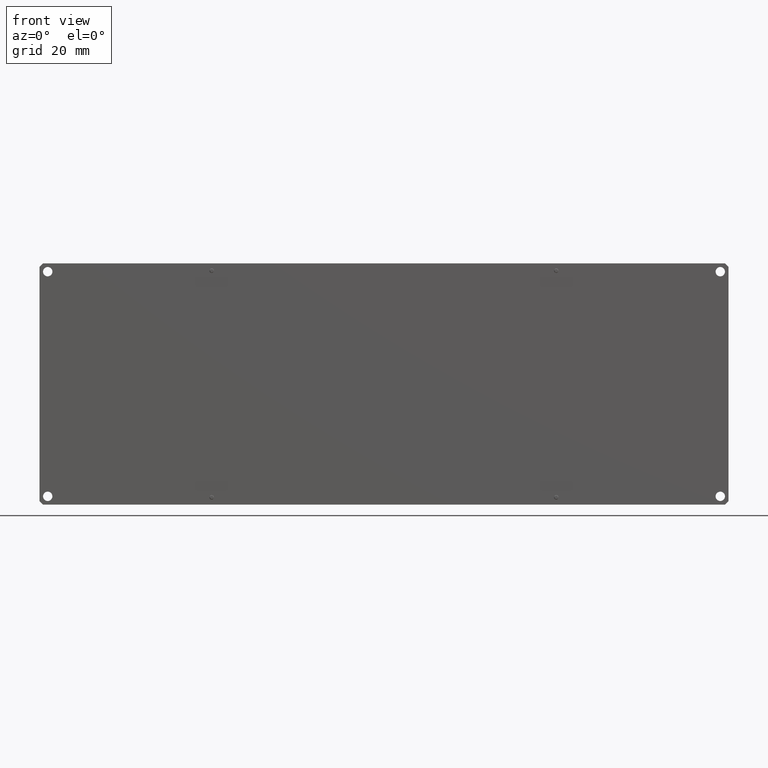
[diagram: clean part render]
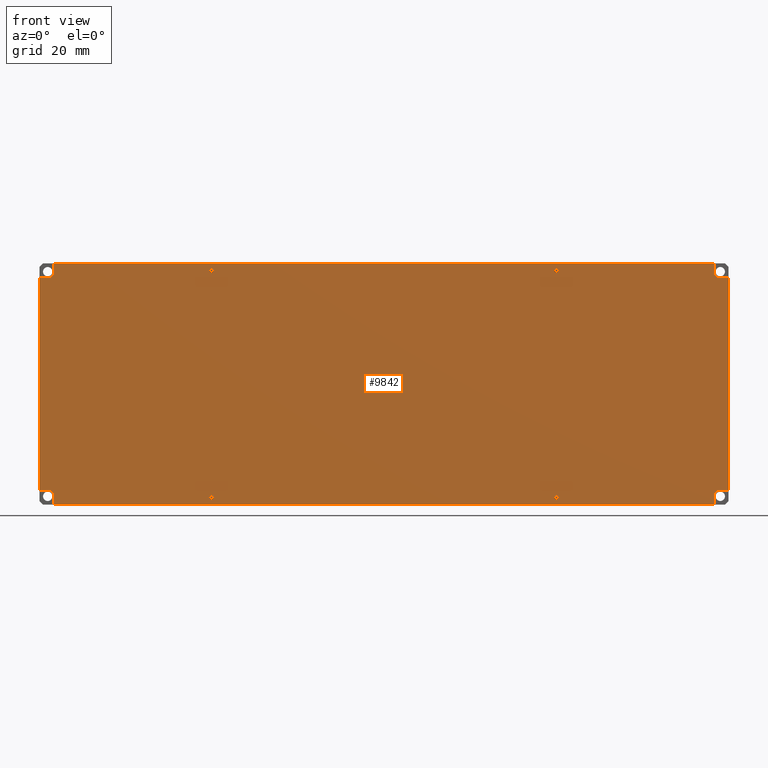
[diagram: same view with one face highlighted and labeled with its STEP entity id]
A machine part, front view. The second image highlights one B-rep face of the part: STEP entity #9842.
In plain terms, the highlighted planar face has unit normal (0, -1, 0).
Its self-contained STEP definition (entity closure, byte-faithful):
#54 = EDGE_LOOP ( 'NONE', ( #3489, #5987 ) ) ;
#159 = EDGE_CURVE ( 'NONE', #6700, #1275, #6209, .T. ) ;
#300 = DIRECTION ( 'NONE',  ( -1.000000000000000000, 0.000000000000000000, 0.000000000000000000 ) ) ;
#303 = CIRCLE ( 'NONE', #9514, 0.7937500000000028422 ) ;
#385 = ORIENTED_EDGE ( 'NONE', *, *, #1023, .T. ) ;
#399 = ORIENTED_EDGE ( 'NONE', *, *, #4015, .T. ) ;
#423 = CARTESIAN_POINT ( 'NONE',  ( 40.26335141060196321, 15.16853224274894707, 42.72163759024714835 ) ) ;
#592 = EDGE_CURVE ( 'NONE', #11281, #5117, #13250, .T. ) ;
#709 = DIRECTION ( 'NONE',  ( 0.000000000000000000, 0.000000000000000000, -1.000000000000000000 ) ) ;
#869 = CARTESIAN_POINT ( 'NONE',  ( -144.3749094508077633, 15.16853224274894529, 44.60883481082478141 ) ) ;
#877 = DIRECTION ( 'NONE',  ( 0.000000000000000000, -1.000000000000000000, 0.000000000000000000 ) ) ;
#993 = LINE ( 'NONE', #6250, #3787 ) ;
#1010 = DIRECTION ( 'NONE',  ( 0.000000000000000000, -1.000000000000000000, 0.000000000000000000 ) ) ;
#1023 = EDGE_CURVE ( 'NONE', #13661, #10976, #4090, .T. ) ;
#1081 = CARTESIAN_POINT ( 'NONE',  ( -86.28510945080824968, 15.16853224274894707, -41.49716518917520602 ) ) ;
#1162 = CARTESIAN_POINT ( 'NONE',  ( 101.0398905491916679, 15.16853224274894529, -38.75396518917558097 ) ) ;
#1255 = CARTESIAN_POINT ( 'NONE',  ( -144.3749094508075927, 15.16853224274894529, 41.56083481082482933 ) ) ;
#1275 = VERTEX_POINT ( 'NONE', #2667 ) ;
#1295 = ORIENTED_EDGE ( 'NONE', *, *, #8875, .F. ) ;
#1365 = AXIS2_PLACEMENT_3D ( 'NONE', #6021, #4962, #3852 ) ;
#1368 = ORIENTED_EDGE ( 'NONE', *, *, #6543, .T. ) ;
#1410 = AXIS2_PLACEMENT_3D ( 'NONE', #8560, #12842, #9883 ) ;
#1523 = VECTOR ( 'NONE', #8697, 1000.000000000000000 ) ;
#1597 = CARTESIAN_POINT ( 'NONE',  ( -85.83357031221844125, 15.16853224274894707, -42.14996796859757211 ) ) ;
#1619 = ORIENTED_EDGE ( 'NONE', *, *, #10301, .T. ) ;
#1625 = DIRECTION ( 'NONE',  ( -0.000000000000000000, 1.000000000000000000, -0.000000000000000000 ) ) ;
#1643 = DIRECTION ( 'NONE',  ( -1.000000000000000000, 0.000000000000000000, 0.000000000000000000 ) ) ;
#1651 = EDGE_CURVE ( 'NONE', #12858, #5943, #9712, .T. ) ;
#1660 = DIRECTION ( 'NONE',  ( 1.000000000000000000, 0.000000000000000000, 0.000000000000000000 ) ) ;
#1801 = ORIENTED_EDGE ( 'NONE', *, *, #9383, .T. ) ;
#2183 = CARTESIAN_POINT ( 'NONE',  ( -144.3749094508077633, 15.16853224274894529, -44.03716518917553913 ) ) ;
#2330 = ORIENTED_EDGE ( 'NONE', *, *, #4262, .F. ) ;
#2355 = ORIENTED_EDGE ( 'NONE', *, *, #10711, .F. ) ;
#2436 = CARTESIAN_POINT ( 'NONE',  ( -86.28510945080824968, 15.16853224274894707, 42.06883481082479648 ) ) ;
#2496 = ORIENTED_EDGE ( 'NONE', *, *, #592, .T. ) ;
#2564 = ORIENTED_EDGE ( 'NONE', *, *, #5886, .T. ) ;
#2567 = CIRCLE ( 'NONE', #4808, 0.7937500000000028422 ) ;
#2667 = CARTESIAN_POINT ( 'NONE',  ( -144.3749094508077349, 15.16853224274894529, -40.98916518917555862 ) ) ;
#2796 = VECTOR ( 'NONE', #11606, 1000.000000000000000 ) ;
#2890 = CARTESIAN_POINT ( 'NONE',  ( -146.6101094508076130, 15.16853224274894529, -38.75396518917558808 ) ) ;
#2930 = VERTEX_POINT ( 'NONE', #1597 ) ;
#2948 = CIRCLE ( 'NONE', #12150, 2.235199999999999854 ) ;
#2973 = DIRECTION ( 'NONE',  ( 0.000000000000000000, 0.000000000000000000, -1.000000000000000000 ) ) ;
#3149 = ORIENTED_EDGE ( 'NONE', *, *, #13086, .T. ) ;
#3300 = FACE_BOUND ( 'NONE', #5816, .T. ) ;
#3342 = EDGE_CURVE ( 'NONE', #5730, #9364, #2948, .T. ) ;
#3378 = DIRECTION ( 'NONE',  ( 0.000000000000000000, 0.000000000000000000, -1.000000000000000000 ) ) ;
#3431 = VECTOR ( 'NONE', #10058, 1000.000000000000000 ) ;
#3487 = DIRECTION ( 'NONE',  ( 1.000000000000000000, 0.000000000000000000, 0.000000000000000000 ) ) ;
#3489 = ORIENTED_EDGE ( 'NONE', *, *, #11814, .F. ) ;
#3521 = DIRECTION ( 'NONE',  ( 6.374311985216712074E-14, 0.000000000000000000, -1.000000000000000000 ) ) ;
#3637 = CARTESIAN_POINT ( 'NONE',  ( -149.6581094508077001, 15.16853224274894529, 39.32563481082482326 ) ) ;
#3656 = DIRECTION ( 'NONE',  ( -0.000000000000000000, 1.000000000000000000, -0.000000000000000000 ) ) ;
#3724 = CARTESIAN_POINT ( 'NONE',  ( -149.6581094508077001, 15.16853224274894529, -38.75396518917558097 ) ) ;
#3787 = VECTOR ( 'NONE', #10402, 1000.000000000000000 ) ;
#3791 = DIRECTION ( 'NONE',  ( 0.000000000000000000, 0.000000000000000000, -1.000000000000000000 ) ) ;
#3808 = LINE ( 'NONE', #11187, #3431 ) ;
#3852 = DIRECTION ( 'NONE',  ( 0.000000000000000000, 0.000000000000000000, -1.000000000000000000 ) ) ;
#3879 = CARTESIAN_POINT ( 'NONE',  ( 104.0878905491917976, 15.16853224274894529, 39.32563481082482326 ) ) ;
#3984 = DIRECTION ( 'NONE',  ( -5.463695987328560673E-14, 0.000000000000000000, 1.000000000000000000 ) ) ;
#4015 = EDGE_CURVE ( 'NONE', #1275, #13296, #6309, .T. ) ;
#4020 = CARTESIAN_POINT ( 'NONE',  ( 104.0878905491917976, 15.16853224274894529, -38.75396518917558097 ) ) ;
#4090 = LINE ( 'NONE', #4020, #2796 ) ;
#4150 = VECTOR ( 'NONE', #7770, 1000.000000000000000 ) ;
#4262 = EDGE_CURVE ( 'NONE', #13395, #11988, #7397, .T. ) ;
#4430 = CARTESIAN_POINT ( 'NONE',  ( 101.0398905491916679, 15.16853224274894529, -38.75396518917557387 ) ) ;
#4483 = ORIENTED_EDGE ( 'NONE', *, *, #5797, .T. ) ;
#4512 = DIRECTION ( 'NONE',  ( 0.000000000000000000, 0.000000000000000000, -1.000000000000000000 ) ) ;
#4530 = CARTESIAN_POINT ( 'NONE',  ( 104.0878905491917976, 15.16853224274894529, -38.75396518917558097 ) ) ;
#4624 = AXIS2_PLACEMENT_3D ( 'NONE', #11374, #12145, #6799 ) ;
#4808 = AXIS2_PLACEMENT_3D ( 'NONE', #2436, #13319, #11003 ) ;
#4831 = CARTESIAN_POINT ( 'NONE',  ( 40.71489054919177875, 15.16853224274894707, 42.06883481082478227 ) ) ;
#4962 = DIRECTION ( 'NONE',  ( 0.000000000000000000, -1.000000000000000000, 0.000000000000000000 ) ) ;
#5117 = VERTEX_POINT ( 'NONE', #7247 ) ;
#5431 = CARTESIAN_POINT ( 'NONE',  ( 98.80469054919183236, 15.16853224274894529, 44.60883481082478141 ) ) ;
#5484 = ORIENTED_EDGE ( 'NONE', *, *, #8191, .T. ) ;
#5538 = CARTESIAN_POINT ( 'NONE',  ( 98.80469054919166183, 15.16853224274894529, -40.98916518917555862 ) ) ;
#5545 = AXIS2_PLACEMENT_3D ( 'NONE', #13130, #3656, #3378 ) ;
#5725 = EDGE_CURVE ( 'NONE', #6993, #5744, #2567, .T. ) ;
#5730 = VERTEX_POINT ( 'NONE', #5538 ) ;
#5744 = VERTEX_POINT ( 'NONE', #5806 ) ;
#5797 = EDGE_CURVE ( 'NONE', #13296, #9963, #6921, .T. ) ;
#5806 = CARTESIAN_POINT ( 'NONE',  ( -86.73664858939805811, 15.16853224274894707, 42.72163759024716256 ) ) ;
#5816 = EDGE_LOOP ( 'NONE', ( #2330, #1295 ) ) ;
#5886 = EDGE_CURVE ( 'NONE', #9963, #5730, #8120, .T. ) ;
#5943 = VERTEX_POINT ( 'NONE', #6424 ) ;
#5972 = VECTOR ( 'NONE', #8234, 1000.000000000000000 ) ;
#5987 = ORIENTED_EDGE ( 'NONE', *, *, #5725, .F. ) ;
#6021 = CARTESIAN_POINT ( 'NONE',  ( -86.28510945080824968, 15.16853224274894707, 42.06883481082479648 ) ) ;
#6182 = AXIS2_PLACEMENT_3D ( 'NONE', #11342, #10144, #1643 ) ;
#6209 = CIRCLE ( 'NONE', #5545, 2.235199999999951004 ) ;
#6250 = CARTESIAN_POINT ( 'NONE',  ( 98.80469054919166183, 15.16853224274894529, 41.56083481082480091 ) ) ;
#6309 = LINE ( 'NONE', #11657, #11877 ) ;
#6325 = CIRCLE ( 'NONE', #7691, 0.7937500000000028422 ) ;
#6329 = CARTESIAN_POINT ( 'NONE',  ( 40.71489054919177875, 15.16853224274894707, 42.06883481082478227 ) ) ;
#6365 = ORIENTED_EDGE ( 'NONE', *, *, #6431, .F. ) ;
#6424 = CARTESIAN_POINT ( 'NONE',  ( 98.80469054919166183, 15.16853224274894529, 41.56083481082480091 ) ) ;
#6431 = EDGE_CURVE ( 'NONE', #2930, #7594, #7712, .T. ) ;
#6505 = ORIENTED_EDGE ( 'NONE', *, *, #6561, .F. ) ;
#6543 = EDGE_CURVE ( 'NONE', #9201, #11552, #13078, .T. ) ;
#6551 = VERTEX_POINT ( 'NONE', #10833 ) ;
#6561 = EDGE_CURVE ( 'NONE', #6551, #12790, #303, .T. ) ;
#6569 = FACE_BOUND ( 'NONE', #54, .T. ) ;
#6700 = VERTEX_POINT ( 'NONE', #2890 ) ;
#6799 = DIRECTION ( 'NONE',  ( 0.000000000000000000, 0.000000000000000000, -1.000000000000000000 ) ) ;
#6921 = LINE ( 'NONE', #8190, #8625 ) ;
#6993 = VERTEX_POINT ( 'NONE', #10958 ) ;
#7101 = ORIENTED_EDGE ( 'NONE', *, *, #13222, .F. ) ;
#7166 = CARTESIAN_POINT ( 'NONE',  ( -86.73664858939805811, 15.16853224274894707, -40.84436240975283994 ) ) ;
#7247 = CARTESIAN_POINT ( 'NONE',  ( -149.6581094508077001, 15.16853224274894529, 39.32563481082482326 ) ) ;
#7397 = CIRCLE ( 'NONE', #10082, 0.7937500000000028422 ) ;
#7594 = VERTEX_POINT ( 'NONE', #7166 ) ;
#7632 = ORIENTED_EDGE ( 'NONE', *, *, #3342, .T. ) ;
#7677 = ORIENTED_EDGE ( 'NONE', *, *, #9192, .T. ) ;
#7691 = AXIS2_PLACEMENT_3D ( 'NONE', #12722, #12435, #709 ) ;
#7705 = PLANE ( 'NONE',  #6182 ) ;
#7712 = CIRCLE ( 'NONE', #13768, 0.7937500000000028422 ) ;
#7770 = DIRECTION ( 'NONE',  ( 0.000000000000000000, 0.000000000000000000, -1.000000000000000000 ) ) ;
#7883 = DIRECTION ( 'NONE',  ( 0.000000000000000000, -1.000000000000000000, 0.000000000000000000 ) ) ;
#8027 = EDGE_LOOP ( 'NONE', ( #7101, #6365 ) ) ;
#8120 = LINE ( 'NONE', #9247, #11759 ) ;
#8159 = LINE ( 'NONE', #3879, #5972 ) ;
#8190 = CARTESIAN_POINT ( 'NONE',  ( -144.3749094508077633, 15.16853224274894529, -44.03716518917553913 ) ) ;
#8191 = EDGE_CURVE ( 'NONE', #5117, #11804, #8825, .T. ) ;
#8234 = DIRECTION ( 'NONE',  ( -1.000000000000000000, 0.000000000000000000, -9.106159978880518463E-15 ) ) ;
#8371 = CIRCLE ( 'NONE', #13510, 2.235200000000013620 ) ;
#8560 = CARTESIAN_POINT ( 'NONE',  ( 101.0398905491916679, 15.16853224274894529, 41.56083481082480091 ) ) ;
#8569 = ORIENTED_EDGE ( 'NONE', *, *, #159, .T. ) ;
#8625 = VECTOR ( 'NONE', #1660, 1000.000000000000000 ) ;
#8697 = DIRECTION ( 'NONE',  ( -1.000000000000000000, 0.000000000000000000, 0.000000000000000000 ) ) ;
#8760 = FACE_BOUND ( 'NONE', #8937, .T. ) ;
#8825 = LINE ( 'NONE', #3637, #4150 ) ;
#8850 = AXIS2_PLACEMENT_3D ( 'NONE', #6329, #1010, #12797 ) ;
#8875 = EDGE_CURVE ( 'NONE', #11988, #13395, #9958, .T. ) ;
#8890 = CIRCLE ( 'NONE', #4624, 0.7937500000000028422 ) ;
#8937 = EDGE_LOOP ( 'NONE', ( #6505, #2355 ) ) ;
#9192 = EDGE_CURVE ( 'NONE', #5943, #9201, #993, .T. ) ;
#9201 = VERTEX_POINT ( 'NONE', #9567 ) ;
#9247 = CARTESIAN_POINT ( 'NONE',  ( 98.80469054919183236, 15.16853224274894529, -44.03716518917553913 ) ) ;
#9364 = VERTEX_POINT ( 'NONE', #4430 ) ;
#9383 = EDGE_CURVE ( 'NONE', #11552, #10928, #11941, .T. ) ;
#9514 = AXIS2_PLACEMENT_3D ( 'NONE', #9719, #7883, #4512 ) ;
#9567 = CARTESIAN_POINT ( 'NONE',  ( 98.80469054919183236, 15.16853224274894529, 44.60883481082478141 ) ) ;
#9712 = CIRCLE ( 'NONE', #1410, 2.235200000000006515 ) ;
#9719 = CARTESIAN_POINT ( 'NONE',  ( 40.71489054919175032, 15.16853224274894707, -41.49716518917522023 ) ) ;
#9730 = VECTOR ( 'NONE', #300, 1000.000000000000000 ) ;
#9842 = ADVANCED_FACE ( 'NONE', ( #12979, #6569, #3300, #8760, #13045 ), #7705, .T. ) ;
#9883 = DIRECTION ( 'NONE',  ( 0.000000000000000000, 0.000000000000000000, -1.000000000000000000 ) ) ;
#9953 = CARTESIAN_POINT ( 'NONE',  ( 104.0878905491917976, 15.16853224274894529, 39.32563481082482326 ) ) ;
#9958 = CIRCLE ( 'NONE', #8850, 0.7937500000000028422 ) ;
#9963 = VERTEX_POINT ( 'NONE', #12738 ) ;
#10058 = DIRECTION ( 'NONE',  ( 1.000000000000000000, 0.000000000000000000, -2.276539994720139871E-15 ) ) ;
#10082 = AXIS2_PLACEMENT_3D ( 'NONE', #4831, #13405, #3791 ) ;
#10144 = DIRECTION ( 'NONE',  ( 0.000000000000000000, -1.000000000000000000, 0.000000000000000000 ) ) ;
#10165 = VECTOR ( 'NONE', #3487, 1000.000000000000000 ) ;
#10196 = DIRECTION ( 'NONE',  ( 0.000000000000000000, 0.000000000000000000, -1.000000000000000000 ) ) ;
#10301 = EDGE_CURVE ( 'NONE', #10976, #12858, #8159, .T. ) ;
#10402 = DIRECTION ( 'NONE',  ( 5.463695987328560673E-14, 0.000000000000000000, 1.000000000000000000 ) ) ;
#10432 = VECTOR ( 'NONE', #3521, 1000.000000000000000 ) ;
#10606 = DIRECTION ( 'NONE',  ( 0.000000000000000000, 0.000000000000000000, -1.000000000000000000 ) ) ;
#10711 = EDGE_CURVE ( 'NONE', #12790, #6551, #8890, .T. ) ;
#10822 = ORIENTED_EDGE ( 'NONE', *, *, #1651, .T. ) ;
#10833 = CARTESIAN_POINT ( 'NONE',  ( 40.26335141060193479, 15.16853224274894707, -40.84436240975285415 ) ) ;
#10923 = LINE ( 'NONE', #1162, #10165 ) ;
#10928 = VERTEX_POINT ( 'NONE', #1255 ) ;
#10954 = CARTESIAN_POINT ( 'NONE',  ( -144.3749094508077633, 15.16853224274894529, 44.60883481082478141 ) ) ;
#10958 = CARTESIAN_POINT ( 'NONE',  ( -85.83357031221844125, 15.16853224274894707, 41.41603203140243039 ) ) ;
#10976 = VERTEX_POINT ( 'NONE', #9953 ) ;
#11003 = DIRECTION ( 'NONE',  ( 0.000000000000000000, 0.000000000000000000, -1.000000000000000000 ) ) ;
#11187 = CARTESIAN_POINT ( 'NONE',  ( -149.6581094508077001, 15.16853224274894529, -38.75396518917558097 ) ) ;
#11252 = CARTESIAN_POINT ( 'NONE',  ( -146.6101094508076130, 15.16853224274894529, 41.56083481082482933 ) ) ;
#11281 = VERTEX_POINT ( 'NONE', #13017 ) ;
#11334 = DIRECTION ( 'NONE',  ( -0.000000000000000000, 1.000000000000000000, -0.000000000000000000 ) ) ;
#11342 = CARTESIAN_POINT ( 'NONE',  ( 154.9471416214960300, 15.16853224274894707, 68.99302252021632853 ) ) ;
#11374 = CARTESIAN_POINT ( 'NONE',  ( 40.71489054919175032, 15.16853224274894707, -41.49716518917522023 ) ) ;
#11531 = ORIENTED_EDGE ( 'NONE', *, *, #13713, .T. ) ;
#11552 = VERTEX_POINT ( 'NONE', #869 ) ;
#11606 = DIRECTION ( 'NONE',  ( 0.000000000000000000, 0.000000000000000000, 1.000000000000000000 ) ) ;
#11657 = CARTESIAN_POINT ( 'NONE',  ( -144.3749094508077633, 15.16853224274894529, -40.98916518917555862 ) ) ;
#11749 = DIRECTION ( 'NONE',  ( 0.000000000000000000, 0.000000000000000000, -1.000000000000000000 ) ) ;
#11759 = VECTOR ( 'NONE', #3984, 1000.000000000000000 ) ;
#11804 = VERTEX_POINT ( 'NONE', #3724 ) ;
#11814 = EDGE_CURVE ( 'NONE', #5744, #6993, #11911, .T. ) ;
#11819 = CARTESIAN_POINT ( 'NONE',  ( 101.0398905491916679, 15.16853224274894529, 39.32563481082479484 ) ) ;
#11877 = VECTOR ( 'NONE', #10606, 1000.000000000000000 ) ;
#11911 = CIRCLE ( 'NONE', #1365, 0.7937500000000028422 ) ;
#11941 = LINE ( 'NONE', #10954, #10432 ) ;
#11988 = VERTEX_POINT ( 'NONE', #12699 ) ;
#12145 = DIRECTION ( 'NONE',  ( 0.000000000000000000, -1.000000000000000000, 0.000000000000000000 ) ) ;
#12150 = AXIS2_PLACEMENT_3D ( 'NONE', #13718, #11334, #2973 ) ;
#12435 = DIRECTION ( 'NONE',  ( 0.000000000000000000, -1.000000000000000000, 0.000000000000000000 ) ) ;
#12699 = CARTESIAN_POINT ( 'NONE',  ( 41.16642968778159428, 15.16853224274894707, 41.41603203140241618 ) ) ;
#12722 = CARTESIAN_POINT ( 'NONE',  ( -86.28510945080824968, 15.16853224274894707, -41.49716518917520602 ) ) ;
#12738 = CARTESIAN_POINT ( 'NONE',  ( 98.80469054919183236, 15.16853224274894529, -44.03716518917553913 ) ) ;
#12790 = VERTEX_POINT ( 'NONE', #13859 ) ;
#12797 = DIRECTION ( 'NONE',  ( 0.000000000000000000, 0.000000000000000000, -1.000000000000000000 ) ) ;
#12842 = DIRECTION ( 'NONE',  ( -0.000000000000000000, 1.000000000000000000, -0.000000000000000000 ) ) ;
#12858 = VERTEX_POINT ( 'NONE', #11819 ) ;
#12977 = CARTESIAN_POINT ( 'NONE',  ( -146.6101094508076130, 15.16853224274894529, 39.32563481082482326 ) ) ;
#12979 = FACE_BOUND ( 'NONE', #8027, .T. ) ;
#13017 = CARTESIAN_POINT ( 'NONE',  ( -146.6101094508076130, 15.16853224274894529, 39.32563481082481616 ) ) ;
#13031 = EDGE_CURVE ( 'NONE', #11804, #6700, #3808, .T. ) ;
#13045 = FACE_OUTER_BOUND ( 'NONE', #13666, .T. ) ;
#13078 = LINE ( 'NONE', #5431, #9730 ) ;
#13085 = ORIENTED_EDGE ( 'NONE', *, *, #13031, .T. ) ;
#13086 = EDGE_CURVE ( 'NONE', #10928, #11281, #8371, .T. ) ;
#13130 = CARTESIAN_POINT ( 'NONE',  ( -146.6101094508077267, 15.16853224274894529, -40.98916518917555862 ) ) ;
#13222 = EDGE_CURVE ( 'NONE', #7594, #2930, #6325, .T. ) ;
#13250 = LINE ( 'NONE', #12977, #1523 ) ;
#13296 = VERTEX_POINT ( 'NONE', #2183 ) ;
#13319 = DIRECTION ( 'NONE',  ( 0.000000000000000000, -1.000000000000000000, 0.000000000000000000 ) ) ;
#13395 = VERTEX_POINT ( 'NONE', #423 ) ;
#13405 = DIRECTION ( 'NONE',  ( 0.000000000000000000, -1.000000000000000000, 0.000000000000000000 ) ) ;
#13510 = AXIS2_PLACEMENT_3D ( 'NONE', #11252, #1625, #10196 ) ;
#13661 = VERTEX_POINT ( 'NONE', #4530 ) ;
#13666 = EDGE_LOOP ( 'NONE', ( #1619, #10822, #7677, #1368, #1801, #3149, #2496, #5484, #13085, #8569, #399, #4483, #2564, #7632, #11531, #385 ) ) ;
#13713 = EDGE_CURVE ( 'NONE', #9364, #13661, #10923, .T. ) ;
#13718 = CARTESIAN_POINT ( 'NONE',  ( 101.0398905491916679, 15.16853224274894529, -40.98916518917557283 ) ) ;
#13768 = AXIS2_PLACEMENT_3D ( 'NONE', #1081, #877, #11749 ) ;
#13859 = CARTESIAN_POINT ( 'NONE',  ( 41.16642968778156586, 15.16853224274894707, -42.14996796859758632 ) ) ;